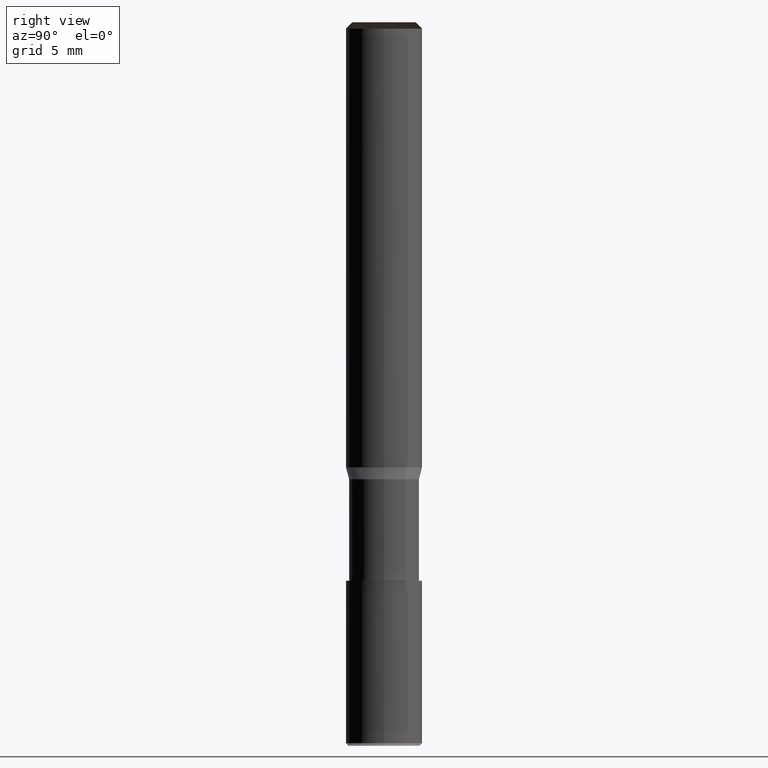
[diagram: clean part render]
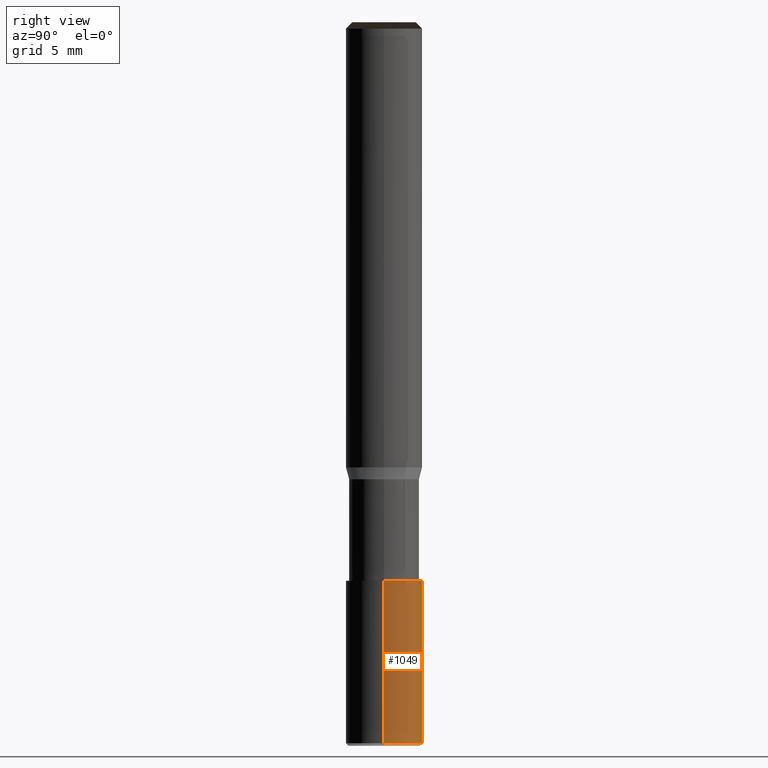
[diagram: same view with one face highlighted and labeled with its STEP entity id]
A machine part, right view. The second image highlights one B-rep face of the part: STEP entity #1049.
In plain terms, the highlighted face is a freeform B-spline surface patch.
Its self-contained STEP definition (entity closure, byte-faithful):
#926=CARTESIAN_POINT('',(3.0,0.0,-21.73300989));
#927=CARTESIAN_POINT('',(3.0,3.0,-21.73300989));
#928=CARTESIAN_POINT('',(0.0,3.0,-21.73300989));
#929=CARTESIAN_POINT('',(-3.0,3.0,-21.73300989));
#930=CARTESIAN_POINT('',(-3.0,0.0,-21.73300989));
#931=CARTESIAN_POINT('',(3.0,0.0,-8.93300989));
#932=CARTESIAN_POINT('',(3.0,3.0,-8.93300989));
#933=CARTESIAN_POINT('',(0.0,3.0,-8.93300989));
#934=CARTESIAN_POINT('',(-3.0,3.0,-8.93300989));
#935=CARTESIAN_POINT('',(-3.0,0.0,-8.93300989));
#1030=(
BOUNDED_SURFACE()
B_SPLINE_SURFACE(1,2,(
(#926,#927,#928,#929,#930),
(#931,#932,#933,#934,#935)
), .UNSPECIFIED.,.F.,.F.,.F.)
B_SPLINE_SURFACE_WITH_KNOTS((2,2),(3,2,3),(
0.0,1.0),(
0.0,0.5,1.0), .UNSPECIFIED.)
GEOMETRIC_REPRESENTATION_ITEM()
RATIONAL_B_SPLINE_SURFACE(((1.0,0.707106781187,1.0,0.707106781187,1.0),
(1.0,0.707106781187,1.0,0.707106781187,1.0)
))
REPRESENTATION_ITEM('')
SURFACE()
);
#1031=(
BOUNDED_CURVE()
B_SPLINE_CURVE(2,(#931,#932,#933,#934,#935),.UNSPECIFIED.,.F.,.F.)
B_SPLINE_CURVE_WITH_KNOTS((3,2,3),
(0.0,0.5,1.0),.UNSPECIFIED.)
CURVE()
GEOMETRIC_REPRESENTATION_ITEM()
RATIONAL_B_SPLINE_CURVE((1.0,0.707106781187,1.0,0.707106781187,1.0))
REPRESENTATION_ITEM('')
);
#1032=(
BOUNDED_CURVE()
B_SPLINE_CURVE(1,(#935,#930),.UNSPECIFIED.,.F.,.F.)
B_SPLINE_CURVE_WITH_KNOTS((2,2),
(0.0,1.0),.UNSPECIFIED.)
CURVE()
GEOMETRIC_REPRESENTATION_ITEM()
RATIONAL_B_SPLINE_CURVE((1.0,1.0))
REPRESENTATION_ITEM('')
);
#1033=(
BOUNDED_CURVE()
B_SPLINE_CURVE(2,(#930,#929,#928,#927,#926),.UNSPECIFIED.,.F.,.F.)
B_SPLINE_CURVE_WITH_KNOTS((3,2,3),
(0.0,0.5,1.0),.UNSPECIFIED.)
CURVE()
GEOMETRIC_REPRESENTATION_ITEM()
RATIONAL_B_SPLINE_CURVE((1.0,0.707106781187,1.0,0.707106781187,1.0))
REPRESENTATION_ITEM('')
);
#1034=(
BOUNDED_CURVE()
B_SPLINE_CURVE(1,(#926,#931),.UNSPECIFIED.,.F.,.F.)
B_SPLINE_CURVE_WITH_KNOTS((2,2),
(0.0,1.0),.UNSPECIFIED.)
CURVE()
GEOMETRIC_REPRESENTATION_ITEM()
RATIONAL_B_SPLINE_CURVE((1.0,1.0))
REPRESENTATION_ITEM('')
);
#1035=VERTEX_POINT('',#926);
#1036=VERTEX_POINT('',#930);
#1037=VERTEX_POINT('',#931);
#1038=VERTEX_POINT('',#935);
#1039=EDGE_CURVE('',#1037,#1038,#1031,.T.);
#1040=EDGE_CURVE('',#1038,#1036,#1032,.T.);
#1041=EDGE_CURVE('',#1036,#1035,#1033,.T.);
#1042=EDGE_CURVE('',#1035,#1037,#1034,.T.);
#1043=ORIENTED_EDGE('',*,*,#1039,.T.);
#1044=ORIENTED_EDGE('',*,*,#1040,.T.);
#1045=ORIENTED_EDGE('',*,*,#1041,.T.);
#1046=ORIENTED_EDGE('',*,*,#1042,.T.);
#1047=EDGE_LOOP('',(#1043,#1044,#1045,#1046));
#1048=FACE_OUTER_BOUND('',#1047,.T.);
#1049=ADVANCED_FACE('',(#1048),#1030,.T.);